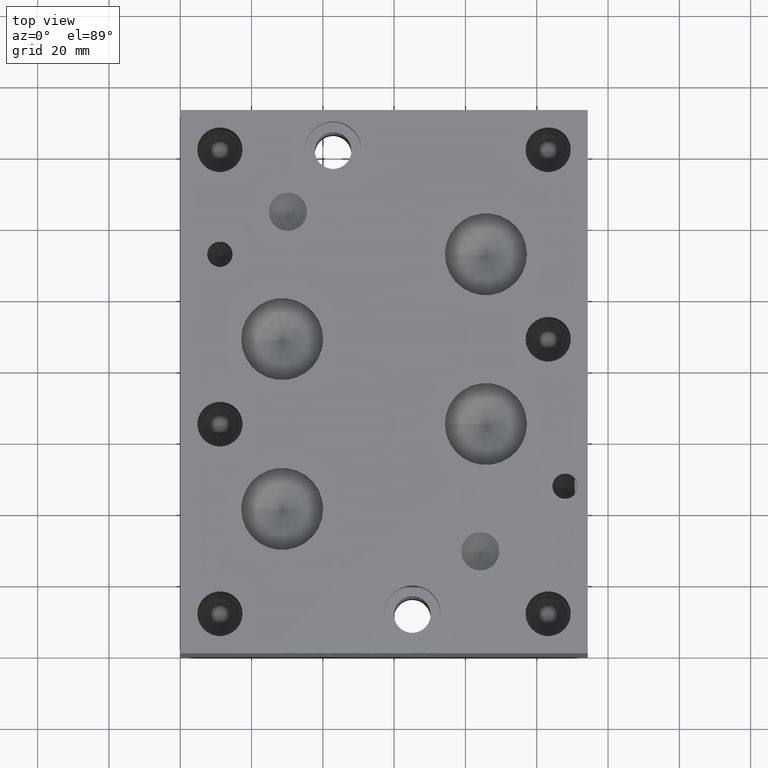
[diagram: clean part render]
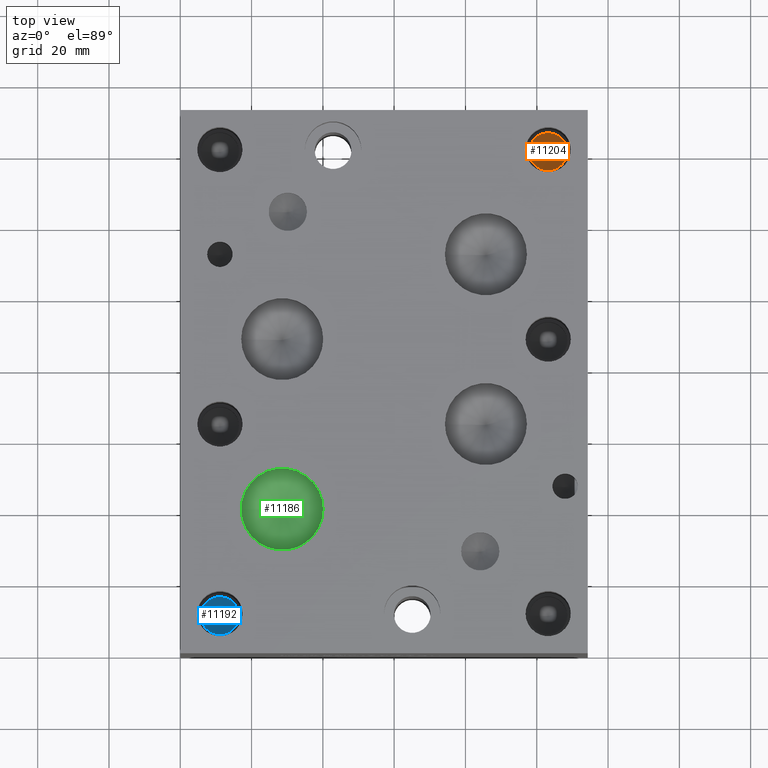
[diagram: same view with three faces highlighted in distinct colors, each labeled with its STEP entity id]
A machine part, top view with three faces highlighted in distinct colors.
Their STEP definitions:

[orange] entity #11204 — the highlighted conical surface has half-angle 60 deg.
#84=CONICAL_SURFACE('',#11784,2.6797,1.0471975511966);
#234=CIRCLE('',#11785,5.3594);
#235=CIRCLE('',#11786,5.3594);
#1244=FACE_OUTER_BOUND('',#1885,.T.);
#1885=EDGE_LOOP('',(#9924,#9925,#9926,#9927));
#2981=LINE('',#19144,#4049);
#4049=VECTOR('',#13983,2.6797);
#5396=VERTEX_POINT('',#19140);
#5397=VERTEX_POINT('',#19141);
#5398=VERTEX_POINT('',#19143);
#6929=EDGE_CURVE('',#5396,#5397,#234,.T.);
#6930=EDGE_CURVE('',#5397,#5398,#2981,.T.);
#6931=EDGE_CURVE('',#5397,#5396,#235,.T.);
#9924=ORIENTED_EDGE('',*,*,#6929,.T.);
#9925=ORIENTED_EDGE('',*,*,#6930,.T.);
#9926=ORIENTED_EDGE('',*,*,#6930,.F.);
#9927=ORIENTED_EDGE('',*,*,#6931,.T.);
#11204=ADVANCED_FACE('',(#1244),#84,.F.);
#11784=AXIS2_PLACEMENT_3D('',#19139,#13979,#13980);
#11785=AXIS2_PLACEMENT_3D('',#19142,#13981,#13982);
#11786=AXIS2_PLACEMENT_3D('',#19145,#13984,#13985);
#13979=DIRECTION('center_axis',(0.,0.,1.));
#13980=DIRECTION('ref_axis',(1.,0.,0.));
#13981=DIRECTION('center_axis',(0.,0.,1.));
#13982=DIRECTION('ref_axis',(1.,0.,0.));
#13983=DIRECTION('',(0.866025403784439,1.06057523872491E-16,-0.5));
#13984=DIRECTION('center_axis',(0.,0.,1.));
#13985=DIRECTION('ref_axis',(1.,0.,0.));
#19139=CARTESIAN_POINT('Origin',(103.1875,141.27988,39.6516744836526));
#19140=CARTESIAN_POINT('',(108.5469,141.27988,41.1988));
#19141=CARTESIAN_POINT('',(97.8281,141.27988,41.1988));
#19142=CARTESIAN_POINT('Origin',(103.1875,141.27988,41.1988));
#19143=CARTESIAN_POINT('',(103.1875,141.27988,38.1045489673051));
#19144=CARTESIAN_POINT('',(100.5078,141.27988,39.6516744836526));
#19145=CARTESIAN_POINT('Origin',(103.1875,141.27988,41.1988));

[blue] entity #11192 — the highlighted conical surface has half-angle 60 deg.
#81=CONICAL_SURFACE('',#11751,2.6797,1.0471975511966);
#213=CIRCLE('',#11752,5.3594);
#214=CIRCLE('',#11753,5.3594);
#1232=FACE_OUTER_BOUND('',#1870,.T.);
#1870=EDGE_LOOP('',(#9870,#9871,#9872,#9873));
#2972=LINE('',#19078,#4040);
#4040=VECTOR('',#13908,2.6797);
#5372=VERTEX_POINT('',#19074);
#5373=VERTEX_POINT('',#19075);
#5374=VERTEX_POINT('',#19077);
#6899=EDGE_CURVE('',#5372,#5373,#213,.T.);
#6900=EDGE_CURVE('',#5373,#5374,#2972,.T.);
#6901=EDGE_CURVE('',#5373,#5372,#214,.T.);
#9870=ORIENTED_EDGE('',*,*,#6899,.T.);
#9871=ORIENTED_EDGE('',*,*,#6900,.T.);
#9872=ORIENTED_EDGE('',*,*,#6900,.F.);
#9873=ORIENTED_EDGE('',*,*,#6901,.T.);
#11192=ADVANCED_FACE('',(#1232),#81,.F.);
#11751=AXIS2_PLACEMENT_3D('',#19073,#13904,#13905);
#11752=AXIS2_PLACEMENT_3D('',#19076,#13906,#13907);
#11753=AXIS2_PLACEMENT_3D('',#19079,#13909,#13910);
#13904=DIRECTION('center_axis',(0.,0.,1.));
#13905=DIRECTION('ref_axis',(1.,0.,0.));
#13906=DIRECTION('center_axis',(0.,0.,1.));
#13907=DIRECTION('ref_axis',(1.,0.,0.));
#13908=DIRECTION('',(0.866025403784439,1.06057523872491E-16,-0.5));
#13909=DIRECTION('center_axis',(0.,0.,1.));
#13910=DIRECTION('ref_axis',(1.,0.,0.));
#19073=CARTESIAN_POINT('Origin',(11.1125,11.10742,39.6516744836526));
#19074=CARTESIAN_POINT('',(16.4719,11.10742,41.1988));
#19075=CARTESIAN_POINT('',(5.7531,11.10742,41.1988));
#19076=CARTESIAN_POINT('Origin',(11.1125,11.10742,41.1988));
#19077=CARTESIAN_POINT('',(11.1125,11.10742,38.1045489673051));
#19078=CARTESIAN_POINT('',(8.4328,11.10742,39.6516744836526));
#19079=CARTESIAN_POINT('Origin',(11.1125,11.10742,41.1988));

[green] entity #11186 — the highlighted conical surface has half-angle 60 deg.
#78=CONICAL_SURFACE('',#11733,5.7531,1.0471975511966);
#201=CIRCLE('',#11734,11.5062);
#202=CIRCLE('',#11735,11.5062);
#1226=FACE_OUTER_BOUND('',#1864,.T.);
#1864=EDGE_LOOP('',(#9840,#9841,#9842,#9843));
#2966=LINE('',#19039,#4034);
#4034=VECTOR('',#13866,5.7531);
#5357=VERTEX_POINT('',#19035);
#5358=VERTEX_POINT('',#19036);
#5359=VERTEX_POINT('',#19038);
#6881=EDGE_CURVE('',#5357,#5358,#201,.T.);
#6882=EDGE_CURVE('',#5358,#5359,#2966,.T.);
#6883=EDGE_CURVE('',#5358,#5357,#202,.T.);
#9840=ORIENTED_EDGE('',*,*,#6881,.T.);
#9841=ORIENTED_EDGE('',*,*,#6882,.T.);
#9842=ORIENTED_EDGE('',*,*,#6882,.F.);
#9843=ORIENTED_EDGE('',*,*,#6883,.T.);
#11186=ADVANCED_FACE('',(#1226),#78,.F.);
#11733=AXIS2_PLACEMENT_3D('',#19034,#13862,#13863);
#11734=AXIS2_PLACEMENT_3D('',#19037,#13864,#13865);
#11735=AXIS2_PLACEMENT_3D('',#19040,#13867,#13868);
#13862=DIRECTION('center_axis',(0.,0.,1.));
#13863=DIRECTION('ref_axis',(1.,0.,0.));
#13864=DIRECTION('center_axis',(0.,0.,1.));
#13865=DIRECTION('ref_axis',(1.,0.,0.));
#13866=DIRECTION('',(0.866025403784439,1.06057523872491E-16,-0.5));
#13867=DIRECTION('center_axis',(0.,0.,1.));
#13868=DIRECTION('ref_axis',(1.,0.,0.));
#19034=CARTESIAN_POINT('Origin',(28.575,40.4622,66.2353361663252));
#19035=CARTESIAN_POINT('',(40.0812,40.4622,69.55689));
#19036=CARTESIAN_POINT('',(17.0688,40.4622,69.55689));
#19037=CARTESIAN_POINT('Origin',(28.575,40.4622,69.55689));
#19038=CARTESIAN_POINT('',(28.575,40.4622,62.9137823326503));
#19039=CARTESIAN_POINT('',(22.8219,40.4622,66.2353361663252));
#19040=CARTESIAN_POINT('Origin',(28.575,40.4622,69.55689));